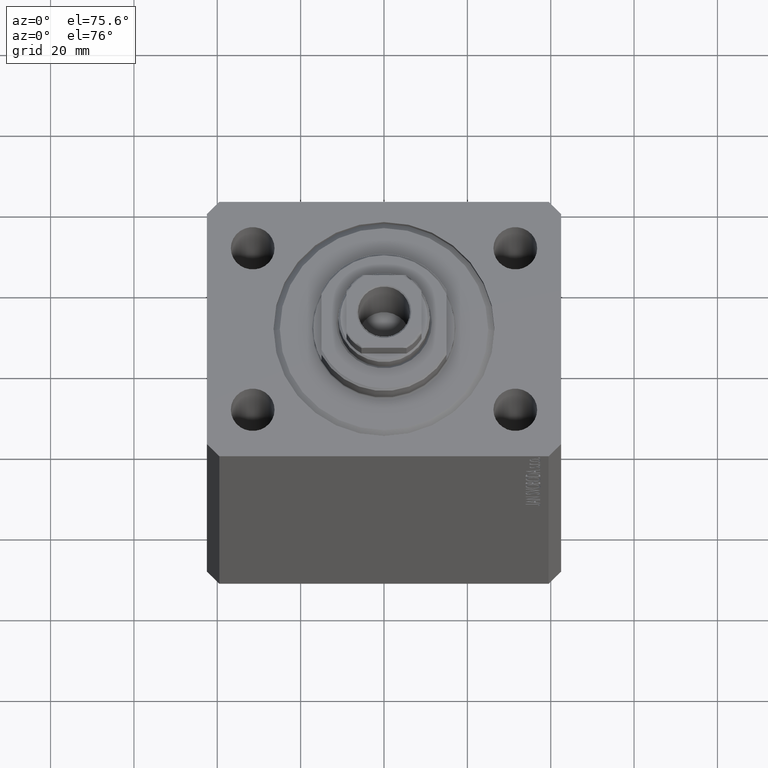
[diagram: clean part render]
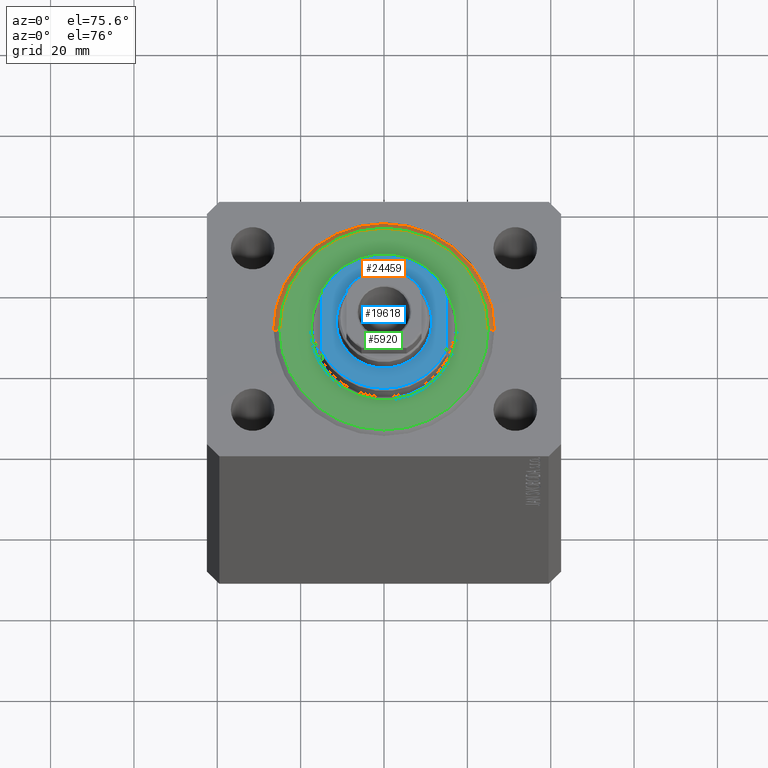
[diagram: same view with three faces highlighted in distinct colors, each labeled with its STEP entity id]
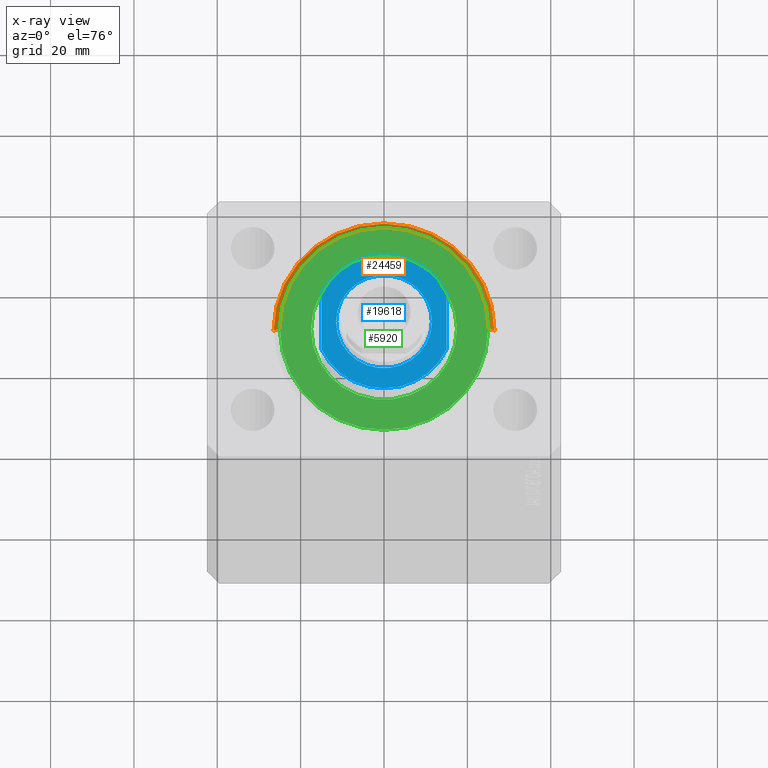
[diagram: x-ray of the same camera — body ghosted, the three highlighted faces saturated]
A machine part, auxiliary view with three faces highlighted in distinct colors.
The next image is the same camera in x-ray (body ghosted, the three faces saturated) — at least one of them is partly hidden behind the body in this view.
Their STEP definitions:

[orange] entity #24459 — the highlighted conical surface has half-angle 45 deg.
#565 = DIRECTION ( 'NONE',  ( 1.000000000000000000, 0.000000000000000000, 0.000000000000000000 ) ) ;
#1136 = EDGE_CURVE ( 'NONE', #5214, #28510, #38372, .T. ) ;
#2160 = EDGE_CURVE ( 'NONE', #16937, #36148, #10896, .T. ) ;
#3847 = EDGE_CURVE ( 'NONE', #28510, #36148, #17841, .T. ) ;
#4108 = DIRECTION ( 'NONE',  ( 0.7071067811865483499, 0.000000000000000000, 0.7071067811865466846 ) ) ;
#4819 = VECTOR ( 'NONE', #4108, 1000.000000000000000 ) ;
#5135 = CARTESIAN_POINT ( 'NONE',  ( -24.99999999999998224, 3.153465507804433615E-15, 0.000000000000000000 ) ) ;
#5214 = VERTEX_POINT ( 'NONE', #26370 ) ;
#5679 = DIRECTION ( 'NONE',  ( -0.000000000000000000, -0.000000000000000000, 1.000000000000000000 ) ) ;
#6884 = ORIENTED_EDGE ( 'NONE', *, *, #3847, .F. ) ;
#7958 = AXIS2_PLACEMENT_3D ( 'NONE', #22803, #43331, #10123 ) ;
#8223 = EDGE_CURVE ( 'NONE', #16937, #5214, #10818, .T. ) ;
#10123 = DIRECTION ( 'NONE',  ( 1.000000000000000000, 0.000000000000000000, 0.000000000000000000 ) ) ;
#10818 = CIRCLE ( 'NONE', #7958, 24.99999999999998224 ) ;
#10896 = LINE ( 'NONE', #24880, #28597 ) ;
#12331 = ORIENTED_EDGE ( 'NONE', *, *, #2160, .T. ) ;
#15753 = EDGE_LOOP ( 'NONE', ( #19059, #12331, #6884, #39527 ) ) ;
#16937 = VERTEX_POINT ( 'NONE', #5135 ) ;
#17841 = CIRCLE ( 'NONE', #38012, 26.50000000000000355 ) ;
#19059 = ORIENTED_EDGE ( 'NONE', *, *, #8223, .F. ) ;
#20666 = CARTESIAN_POINT ( 'NONE',  ( 26.50000000000000355, 3.245314017740486554E-15, 1.500000000000018652 ) ) ;
#20852 = CARTESIAN_POINT ( 'NONE',  ( 0.000000000000000000, 0.000000000000000000, 1.500000000000018652 ) ) ;
#21279 = DIRECTION ( 'NONE',  ( -0.000000000000000000, -0.000000000000000000, 1.000000000000000000 ) ) ;
#22803 = CARTESIAN_POINT ( 'NONE',  ( 0.000000000000000000, 0.000000000000000000, 0.000000000000000000 ) ) ;
#23036 = DIRECTION ( 'NONE',  ( 1.000000000000000000, 0.000000000000000000, 0.000000000000000000 ) ) ;
#24459 = ADVANCED_FACE ( 'NONE', ( #25994 ), #41518, .T. ) ;
#24880 = CARTESIAN_POINT ( 'NONE',  ( -26.50000000000000355, 3.245314017740486554E-15, 1.500000000000018652 ) ) ;
#25994 = FACE_OUTER_BOUND ( 'NONE', #15753, .T. ) ;
#26370 = CARTESIAN_POINT ( 'NONE',  ( 24.99999999999998224, 0.000000000000000000, 0.000000000000000000 ) ) ;
#28510 = VERTEX_POINT ( 'NONE', #20666 ) ;
#28597 = VECTOR ( 'NONE', #38611, 1000.000000000000000 ) ;
#31436 = AXIS2_PLACEMENT_3D ( 'NONE', #40172, #5679, #23036 ) ;
#34986 = CARTESIAN_POINT ( 'NONE',  ( 26.50000000000000355, 0.000000000000000000, 1.500000000000018652 ) ) ;
#36148 = VERTEX_POINT ( 'NONE', #44269 ) ;
#38012 = AXIS2_PLACEMENT_3D ( 'NONE', #20852, #21279, #565 ) ;
#38372 = LINE ( 'NONE', #34986, #4819 ) ;
#38611 = DIRECTION ( 'NONE',  ( -0.7071067811865483499, 8.659560562354942719E-17, 0.7071067811865466846 ) ) ;
#39527 = ORIENTED_EDGE ( 'NONE', *, *, #1136, .F. ) ;
#40172 = CARTESIAN_POINT ( 'NONE',  ( 0.000000000000000000, 0.000000000000000000, 1.500000000000018652 ) ) ;
#41518 = CONICAL_SURFACE ( 'NONE', #31436, 26.50000000000000355, 0.7853981633974495002 ) ;
#43331 = DIRECTION ( 'NONE',  ( -0.000000000000000000, -0.000000000000000000, -1.000000000000000000 ) ) ;
#44269 = CARTESIAN_POINT ( 'NONE',  ( -26.50000000000000355, 0.000000000000000000, 1.500000000000018652 ) ) ;

[blue] entity #19618 — the highlighted planar face has unit normal (0, 0, 1).
#1251 = AXIS2_PLACEMENT_3D ( 'NONE', #28523, #24499, #38014 ) ;
#1278 = FACE_OUTER_BOUND ( 'NONE', #16253, .T. ) ;
#2291 = CARTESIAN_POINT ( 'NONE',  ( 0.000000000000000000, 0.000000000000000000, -7.000000000000000000 ) ) ;
#3195 = VERTEX_POINT ( 'NONE', #7735 ) ;
#4251 = CARTESIAN_POINT ( 'NONE',  ( 0.000000000000000000, 0.000000000000000000, -7.000000000000000000 ) ) ;
#4463 = VERTEX_POINT ( 'NONE', #37654 ) ;
#4923 = ORIENTED_EDGE ( 'NONE', *, *, #23767, .T. ) ;
#5992 = DIRECTION ( 'NONE',  ( -0.000000000000000000, -1.000000000000000000, -0.000000000000000000 ) ) ;
#6073 = VERTEX_POINT ( 'NONE', #17753 ) ;
#6446 = VERTEX_POINT ( 'NONE', #6549 ) ;
#6549 = CARTESIAN_POINT ( 'NONE',  ( 14.99999999999999645, -6.873863542433817031, -7.000000000000000000 ) ) ;
#7735 = CARTESIAN_POINT ( 'NONE',  ( 14.99999999999999645, 6.873863542433817031, -7.000000000000000000 ) ) ;
#7817 = DIRECTION ( 'NONE',  ( -1.000000000000000000, 0.000000000000000000, -0.000000000000000000 ) ) ;
#9564 = EDGE_CURVE ( 'NONE', #4463, #3195, #20235, .T. ) ;
#13782 = AXIS2_PLACEMENT_3D ( 'NONE', #39340, #32110, #32340 ) ;
#14858 = CIRCLE ( 'NONE', #33597, 11.50000000000001776 ) ;
#15297 = DIRECTION ( 'NONE',  ( -1.000000000000000000, 0.000000000000000000, 0.000000000000000000 ) ) ;
#15521 = AXIS2_PLACEMENT_3D ( 'NONE', #38693, #29009, #7817 ) ;
#16036 = DIRECTION ( 'NONE',  ( -1.000000000000000000, 0.000000000000000000, 0.000000000000000000 ) ) ;
#16253 = EDGE_LOOP ( 'NONE', ( #28476, #37543, #21273, #22204 ) ) ;
#17499 = CARTESIAN_POINT ( 'NONE',  ( 15.00000000000000000, -42.42640687119285303, -7.000000000000000000 ) ) ;
#17753 = CARTESIAN_POINT ( 'NONE',  ( 11.50000000000001776, 1.408343819019458543E-15, -7.000000000000000000 ) ) ;
#18404 = PLANE ( 'NONE',  #15521 ) ;
#19618 = ADVANCED_FACE ( 'NONE', ( #31489, #1278 ), #18404, .T. ) ;
#20235 = CIRCLE ( 'NONE', #24550, 16.50000000000002132 ) ;
#21008 = ORIENTED_EDGE ( 'NONE', *, *, #40137, .T. ) ;
#21273 = ORIENTED_EDGE ( 'NONE', *, *, #26907, .T. ) ;
#21667 = VECTOR ( 'NONE', #23842, 1000.000000000000000 ) ;
#22204 = ORIENTED_EDGE ( 'NONE', *, *, #43922, .F. ) ;
#23767 = EDGE_CURVE ( 'NONE', #6073, #43310, #14858, .T. ) ;
#23805 = LINE ( 'NONE', #37547, #35398 ) ;
#23842 = DIRECTION ( 'NONE',  ( 0.000000000000000000, -1.000000000000000000, -0.000000000000000000 ) ) ;
#24499 = DIRECTION ( 'NONE',  ( 0.000000000000000000, 0.000000000000000000, -1.000000000000000000 ) ) ;
#24550 = AXIS2_PLACEMENT_3D ( 'NONE', #4251, #28371, #15297 ) ;
#26907 = EDGE_CURVE ( 'NONE', #6446, #41572, #42319, .T. ) ;
#27229 = LINE ( 'NONE', #17499, #21667 ) ;
#27461 = EDGE_LOOP ( 'NONE', ( #21008, #4923 ) ) ;
#28371 = DIRECTION ( 'NONE',  ( 0.000000000000000000, 0.000000000000000000, -1.000000000000000000 ) ) ;
#28476 = ORIENTED_EDGE ( 'NONE', *, *, #9564, .T. ) ;
#28523 = CARTESIAN_POINT ( 'NONE',  ( 0.000000000000000000, 0.000000000000000000, -7.000000000000000000 ) ) ;
#29009 = DIRECTION ( 'NONE',  ( 0.000000000000000000, 0.000000000000000000, -1.000000000000000000 ) ) ;
#29345 = DIRECTION ( 'NONE',  ( -0.000000000000000000, -0.000000000000000000, 1.000000000000000000 ) ) ;
#30822 = CARTESIAN_POINT ( 'NONE',  ( -14.99999999999999645, -6.873863542433817031, -7.000000000000000000 ) ) ;
#31489 = FACE_BOUND ( 'NONE', #27461, .T. ) ;
#32110 = DIRECTION ( 'NONE',  ( -0.000000000000000000, -0.000000000000000000, 1.000000000000000000 ) ) ;
#32340 = DIRECTION ( 'NONE',  ( -1.000000000000000000, 0.000000000000000000, 0.000000000000000000 ) ) ;
#33597 = AXIS2_PLACEMENT_3D ( 'NONE', #2291, #29345, #16036 ) ;
#34488 = CARTESIAN_POINT ( 'NONE',  ( -11.50000000000001776, 0.000000000000000000, -7.000000000000000000 ) ) ;
#35398 = VECTOR ( 'NONE', #5992, 1000.000000000000000 ) ;
#37543 = ORIENTED_EDGE ( 'NONE', *, *, #40957, .T. ) ;
#37547 = CARTESIAN_POINT ( 'NONE',  ( -15.00000000000000000, -42.42640687119285303, -7.000000000000000000 ) ) ;
#37654 = CARTESIAN_POINT ( 'NONE',  ( -14.99999999999999645, 6.873863542433817031, -7.000000000000000000 ) ) ;
#38014 = DIRECTION ( 'NONE',  ( -1.000000000000000000, 0.000000000000000000, 0.000000000000000000 ) ) ;
#38693 = CARTESIAN_POINT ( 'NONE',  ( 0.000000000000000000, 0.000000000000000000, -7.000000000000000000 ) ) ;
#38953 = CIRCLE ( 'NONE', #13782, 11.50000000000001776 ) ;
#39340 = CARTESIAN_POINT ( 'NONE',  ( 0.000000000000000000, 0.000000000000000000, -7.000000000000000000 ) ) ;
#40137 = EDGE_CURVE ( 'NONE', #43310, #6073, #38953, .T. ) ;
#40957 = EDGE_CURVE ( 'NONE', #3195, #6446, #27229, .T. ) ;
#41572 = VERTEX_POINT ( 'NONE', #30822 ) ;
#42319 = CIRCLE ( 'NONE', #1251, 16.50000000000002132 ) ;
#43310 = VERTEX_POINT ( 'NONE', #34488 ) ;
#43922 = EDGE_CURVE ( 'NONE', #4463, #41572, #23805, .T. ) ;

[green] entity #5920 — the highlighted planar face has unit normal (0, 0, -1).
#566 = ORIENTED_EDGE ( 'NONE', *, *, #8223, .T. ) ;
#628 = CARTESIAN_POINT ( 'NONE',  ( -17.50000000000000000, 2.143131898507868643E-15, 2.168404344971008868E-16 ) ) ;
#945 = DIRECTION ( 'NONE',  ( 1.000000000000000000, 0.000000000000000000, 0.000000000000000000 ) ) ;
#3919 = VERTEX_POINT ( 'NONE', #5491 ) ;
#4498 = DIRECTION ( 'NONE',  ( 1.000000000000000000, 0.000000000000000000, -0.000000000000000000 ) ) ;
#5135 = CARTESIAN_POINT ( 'NONE',  ( -24.99999999999998224, 3.153465507804433615E-15, 0.000000000000000000 ) ) ;
#5214 = VERTEX_POINT ( 'NONE', #26370 ) ;
#5491 = CARTESIAN_POINT ( 'NONE',  ( 17.50000000000000000, 0.000000000000000000, 2.168404344971008868E-16 ) ) ;
#5920 = ADVANCED_FACE ( 'NONE', ( #12175, #32673 ), #36069, .F. ) ;
#6865 = AXIS2_PLACEMENT_3D ( 'NONE', #19151, #25715, #4498 ) ;
#7958 = AXIS2_PLACEMENT_3D ( 'NONE', #22803, #43331, #10123 ) ;
#8129 = CARTESIAN_POINT ( 'NONE',  ( 0.000000000000000000, 0.000000000000000000, 0.000000000000000000 ) ) ;
#8152 = EDGE_CURVE ( 'NONE', #3919, #19583, #25218, .T. ) ;
#8223 = EDGE_CURVE ( 'NONE', #16937, #5214, #10818, .T. ) ;
#9535 = ORIENTED_EDGE ( 'NONE', *, *, #42213, .T. ) ;
#10123 = DIRECTION ( 'NONE',  ( 1.000000000000000000, 0.000000000000000000, 0.000000000000000000 ) ) ;
#10818 = CIRCLE ( 'NONE', #7958, 24.99999999999998224 ) ;
#11200 = DIRECTION ( 'NONE',  ( 1.000000000000000000, 0.000000000000000000, 0.000000000000000000 ) ) ;
#12175 = FACE_BOUND ( 'NONE', #38672, .T. ) ;
#14588 = DIRECTION ( 'NONE',  ( -0.000000000000000000, -0.000000000000000000, -1.000000000000000000 ) ) ;
#14912 = CARTESIAN_POINT ( 'NONE',  ( 0.000000000000000000, 0.000000000000000000, 0.000000000000000000 ) ) ;
#16937 = VERTEX_POINT ( 'NONE', #5135 ) ;
#18870 = CARTESIAN_POINT ( 'NONE',  ( 0.000000000000000000, 0.000000000000000000, 0.000000000000000000 ) ) ;
#19151 = CARTESIAN_POINT ( 'NONE',  ( 0.000000000000000000, 0.000000000000000000, 0.000000000000000000 ) ) ;
#19583 = VERTEX_POINT ( 'NONE', #628 ) ;
#20920 = CIRCLE ( 'NONE', #41103, 24.99999999999998224 ) ;
#22803 = CARTESIAN_POINT ( 'NONE',  ( 0.000000000000000000, 0.000000000000000000, 0.000000000000000000 ) ) ;
#24613 = DIRECTION ( 'NONE',  ( 1.000000000000000000, 0.000000000000000000, 0.000000000000000000 ) ) ;
#25218 = CIRCLE ( 'NONE', #28808, 17.50000000000000000 ) ;
#25715 = DIRECTION ( 'NONE',  ( 0.000000000000000000, 0.000000000000000000, 1.000000000000000000 ) ) ;
#26056 = AXIS2_PLACEMENT_3D ( 'NONE', #8129, #35396, #24613 ) ;
#26370 = CARTESIAN_POINT ( 'NONE',  ( 24.99999999999998224, 0.000000000000000000, 0.000000000000000000 ) ) ;
#28670 = DIRECTION ( 'NONE',  ( 0.000000000000000000, 0.000000000000000000, 1.000000000000000000 ) ) ;
#28808 = AXIS2_PLACEMENT_3D ( 'NONE', #14912, #28670, #945 ) ;
#28925 = CIRCLE ( 'NONE', #26056, 17.50000000000000000 ) ;
#32673 = FACE_OUTER_BOUND ( 'NONE', #34912, .T. ) ;
#34912 = EDGE_LOOP ( 'NONE', ( #38750, #566 ) ) ;
#35396 = DIRECTION ( 'NONE',  ( 0.000000000000000000, 0.000000000000000000, 1.000000000000000000 ) ) ;
#36069 = PLANE ( 'NONE',  #6865 ) ;
#38672 = EDGE_LOOP ( 'NONE', ( #44259, #9535 ) ) ;
#38750 = ORIENTED_EDGE ( 'NONE', *, *, #39056, .T. ) ;
#39056 = EDGE_CURVE ( 'NONE', #5214, #16937, #20920, .T. ) ;
#41103 = AXIS2_PLACEMENT_3D ( 'NONE', #18870, #14588, #11200 ) ;
#42213 = EDGE_CURVE ( 'NONE', #19583, #3919, #28925, .T. ) ;
#43331 = DIRECTION ( 'NONE',  ( -0.000000000000000000, -0.000000000000000000, -1.000000000000000000 ) ) ;
#44259 = ORIENTED_EDGE ( 'NONE', *, *, #8152, .T. ) ;